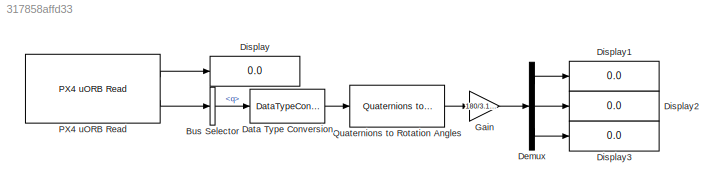
MODEL slx_317858affd33
KIND model
CONFIG AbsTol = auto
CONFIG EnableMultiTasking = on
CONFIG FixedStep = auto
CONFIG MaxStep = 0.005
CONFIG MinStep = auto
CONFIG RelTol = 1e-3
CONFIG SampleTimeConstraint = Unconstrained
CONFIG SolverName = FixedStepAuto
CONFIG StartTime = 0.0
CONFIG StopTime = inf
BLOCK [BusSelector] Bus Selector
  OutputSignals = q
  Ports = [1, 1]
BLOCK [DataTypeConversion] Data Type Conversion
  OutDataTypeStr = double
  RndMeth = Floor
  SaturateOnIntegerOverflow = off
BLOCK [Demux] Demux
  Outputs = 3
  Ports = [1, 3]
BLOCK [Display] Display
  Decimation = 1
  Ports = [1]
BLOCK [Display] Display1
  Decimation = 1
  Ports = [1]
BLOCK [Display] Display2
  Decimation = 1
  Ports = [1]
BLOCK [Display] Display3
  Decimation = 1
  Ports = [1]
BLOCK [Gain] Gain
  Gain = 180/3.1415926
BLOCK [Reference] PX4 uORB Read  REF=px4uORBlib/PX4 uORB Read
  Ports = [0, 2]
  SourceBlock = px4uORBlib/PX4 uORB Read
  SourceProductBaseCode = PX4AUTOPILOTS
  SourceType = PX4 uORB Read
BLOCK [Reference] Quaternions to Rotation Angles  REF=sharedtransform/Quaternions to Rotation Angles
  AttributesFormatString = Rotation Order: %<rotationOrder>
  Ports = [1, 1]
  SourceBlock = sharedtransform/Quaternions to Rotation Angles
  SourceProductBaseCode = AE,PW,DR,MT,VE
  SourceType = Quat2Ang
LINE Bus Selector:1 -> Data Type Conversion:1
LINE Data Type Conversion:1 -> Quaternions to Rotation Angles:1
LINE Demux:1 -> Display1:1
LINE Demux:2 -> Display2:1
LINE Demux:3 -> Display3:1
LINE Gain:1 -> Demux:1
LINE PX4 uORB Read:1 -> Display:1
LINE PX4 uORB Read:2 -> Bus Selector:1
LINE Quaternions to Rotation Angles:1 -> Gain:1
